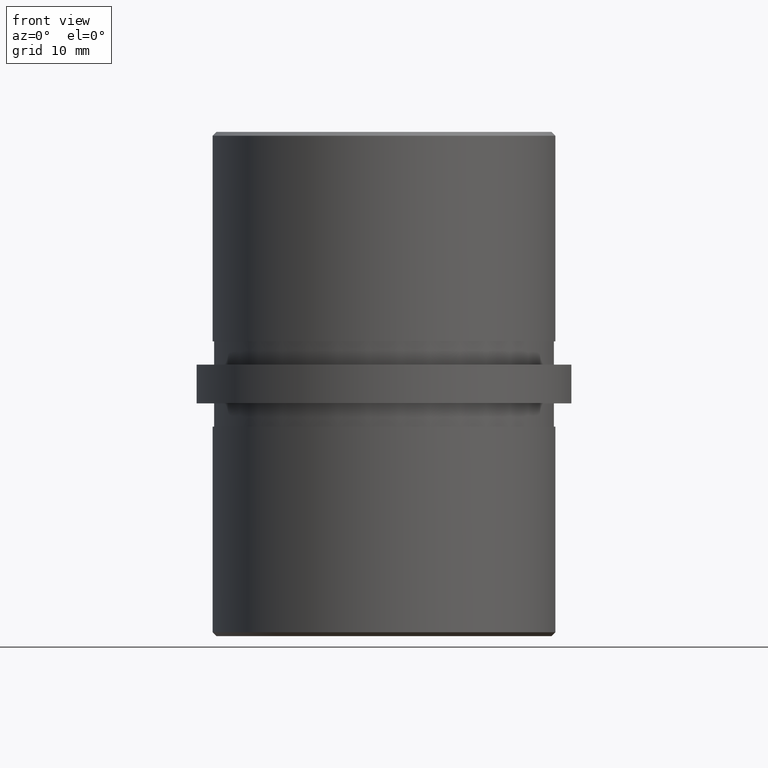
[diagram: clean part render]
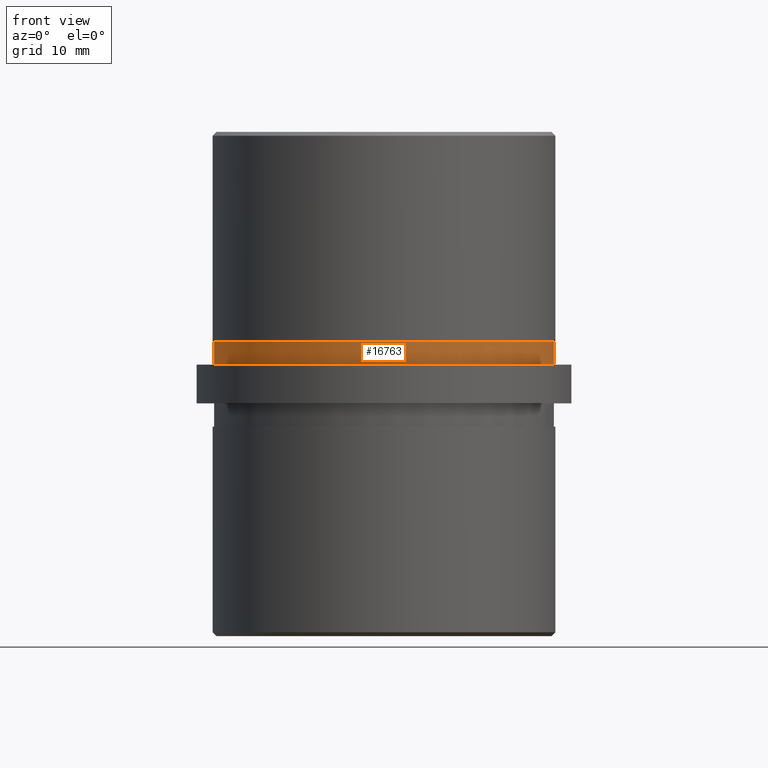
[diagram: same view with one face highlighted and labeled with its STEP entity id]
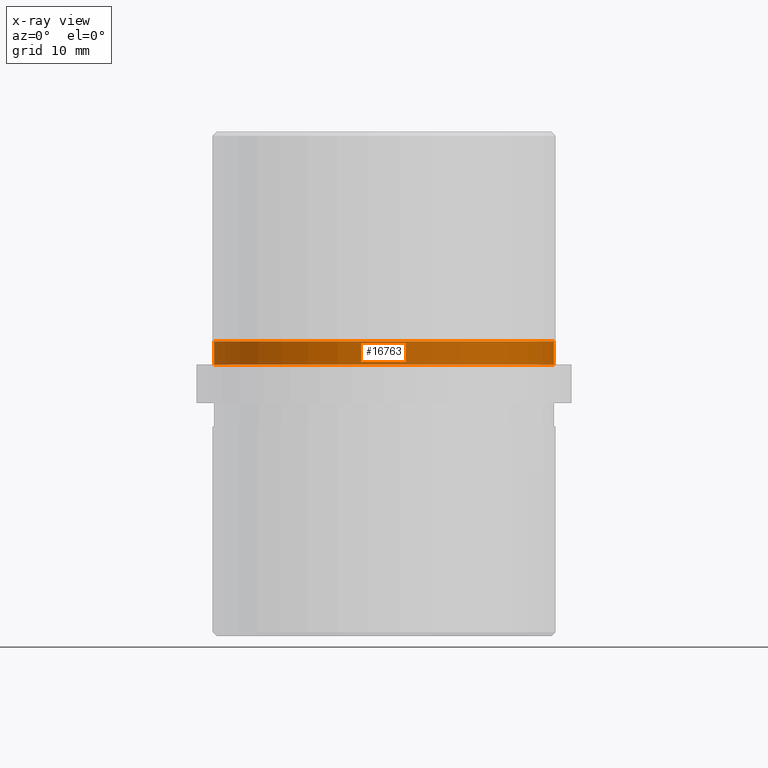
[diagram: x-ray of the same camera — body ghosted, the highlighted face saturated]
A machine part, front view. The second image highlights one B-rep face of the part: STEP entity #16763.
The next image is the same camera in x-ray: the body ghosted, the highlighted face saturated — about 0% of this face is hidden behind the body in this view.
In plain terms, the highlighted cylindrical surface (partial cylindrical patch) has radius 21.9 mm, axis along (-0, -0, -1).
Its self-contained STEP definition (entity closure, byte-faithful):
#162 = CARTESIAN_POINT ( 'NONE',  ( 0.0000000000000000000, 0.0000000000000000000, 2.500000000000000000 ) ) ;
#355 = EDGE_LOOP ( 'NONE', ( #14253, #1682, #5340, #2451 ) ) ;
#527 = AXIS2_PLACEMENT_3D ( 'NONE', #162, #18662, #13788 ) ;
#1065 = LINE ( 'NONE', #7602, #18484 ) ;
#1682 = ORIENTED_EDGE ( 'NONE', *, *, #14699, .F. ) ;
#1842 = EDGE_CURVE ( 'NONE', #21650, #6233, #1868, .T. ) ;
#1868 = CIRCLE ( 'NONE', #527, 21.89999999999999900 ) ;
#2451 = ORIENTED_EDGE ( 'NONE', *, *, #1842, .T. ) ;
#2642 = VECTOR ( 'NONE', #15145, 1000.000000000000000 ) ;
#2892 = EDGE_CURVE ( 'NONE', #12977, #6233, #3192, .T. ) ;
#3192 = LINE ( 'NONE', #20219, #2642 ) ;
#4620 = CARTESIAN_POINT ( 'NONE',  ( 0.0000000000000000000, 0.0000000000000000000, 5.500000000000000000 ) ) ;
#5340 = ORIENTED_EDGE ( 'NONE', *, *, #19911, .T. ) ;
#6233 = VERTEX_POINT ( 'NONE', #21319 ) ;
#6337 = CARTESIAN_POINT ( 'NONE',  ( -21.89999999999999900, 0.0000000000000000000, 5.500000000000000000 ) ) ;
#6572 = CARTESIAN_POINT ( 'NONE',  ( 21.89999999999999900, 2.681976490132703500E-015, 5.500000000000000000 ) ) ;
#7602 = CARTESIAN_POINT ( 'NONE',  ( -21.89999999999999900, 0.0000000000000000000, 5.500000000000000000 ) ) ;
#7939 = DIRECTION ( 'NONE',  ( -1.000000000000000000, 0.0000000000000000000, 0.0000000000000000000 ) ) ;
#8819 = AXIS2_PLACEMENT_3D ( 'NONE', #4620, #19877, #7939 ) ;
#8876 = CARTESIAN_POINT ( 'NONE',  ( -21.89999999999999900, 0.0000000000000000000, 2.500000000000000000 ) ) ;
#9163 = DIRECTION ( 'NONE',  ( 1.000000000000000000, 0.0000000000000000000, 0.0000000000000000000 ) ) ;
#10094 = AXIS2_PLACEMENT_3D ( 'NONE', #19127, #12411, #9163 ) ;
#12411 = DIRECTION ( 'NONE',  ( 0.0000000000000000000, 0.0000000000000000000, 1.000000000000000000 ) ) ;
#12977 = VERTEX_POINT ( 'NONE', #6572 ) ;
#13788 = DIRECTION ( 'NONE',  ( 1.000000000000000000, 0.0000000000000000000, 0.0000000000000000000 ) ) ;
#14253 = ORIENTED_EDGE ( 'NONE', *, *, #2892, .F. ) ;
#14699 = EDGE_CURVE ( 'NONE', #15666, #12977, #20993, .T. ) ;
#15145 = DIRECTION ( 'NONE',  ( -0.0000000000000000000, -0.0000000000000000000, -1.000000000000000000 ) ) ;
#15666 = VERTEX_POINT ( 'NONE', #6337 ) ;
#16099 = CYLINDRICAL_SURFACE ( 'NONE', #8819, 21.89999999999999900 ) ;
#16265 = DIRECTION ( 'NONE',  ( -0.0000000000000000000, -0.0000000000000000000, -1.000000000000000000 ) ) ;
#16763 = ADVANCED_FACE ( 'NONE', ( #18228 ), #16099, .T. ) ;
#18228 = FACE_OUTER_BOUND ( 'NONE', #355, .T. ) ;
#18484 = VECTOR ( 'NONE', #16265, 1000.000000000000000 ) ;
#18662 = DIRECTION ( 'NONE',  ( 0.0000000000000000000, 0.0000000000000000000, 1.000000000000000000 ) ) ;
#19127 = CARTESIAN_POINT ( 'NONE',  ( 0.0000000000000000000, 0.0000000000000000000, 5.500000000000000000 ) ) ;
#19877 = DIRECTION ( 'NONE',  ( -0.0000000000000000000, -0.0000000000000000000, -1.000000000000000000 ) ) ;
#19911 = EDGE_CURVE ( 'NONE', #15666, #21650, #1065, .T. ) ;
#20219 = CARTESIAN_POINT ( 'NONE',  ( 21.89999999999999900, 2.681976490132703500E-015, 5.500000000000000000 ) ) ;
#20993 = CIRCLE ( 'NONE', #10094, 21.89999999999999900 ) ;
#21319 = CARTESIAN_POINT ( 'NONE',  ( 21.89999999999999900, 2.681976490132703500E-015, 2.500000000000000000 ) ) ;
#21650 = VERTEX_POINT ( 'NONE', #8876 ) ;